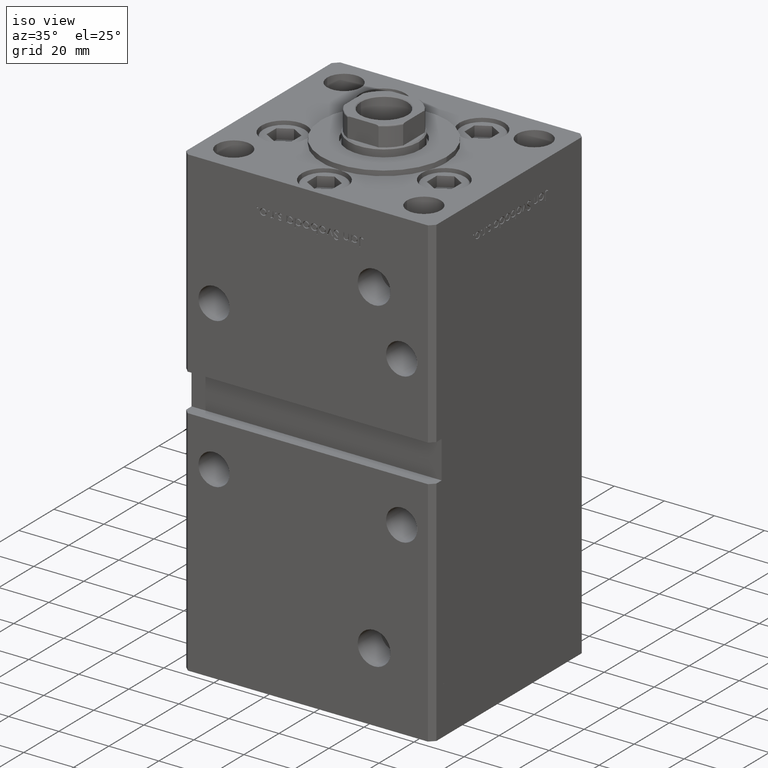
[diagram: clean part render]
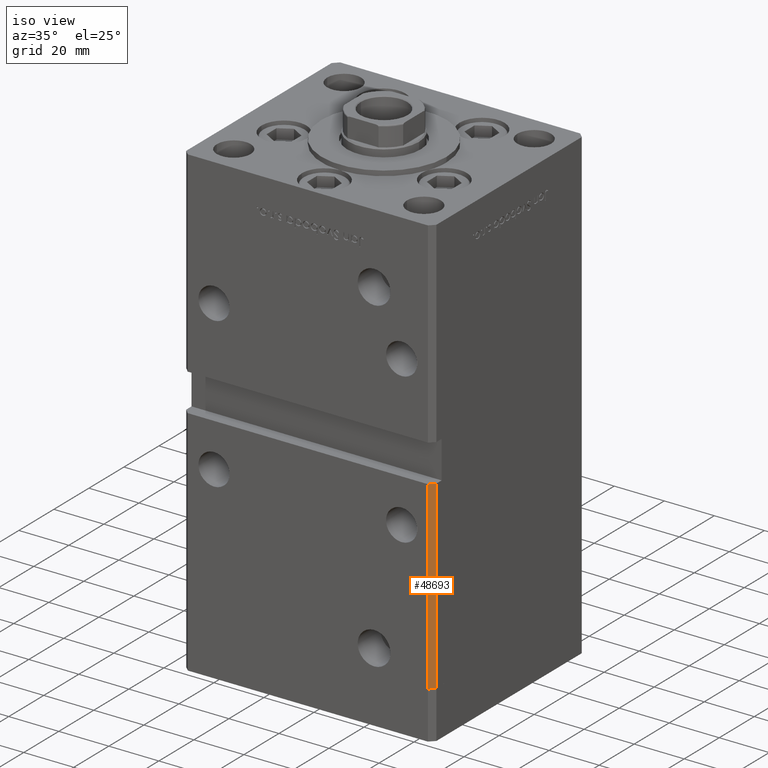
[diagram: same view with one face highlighted and labeled with its STEP entity id]
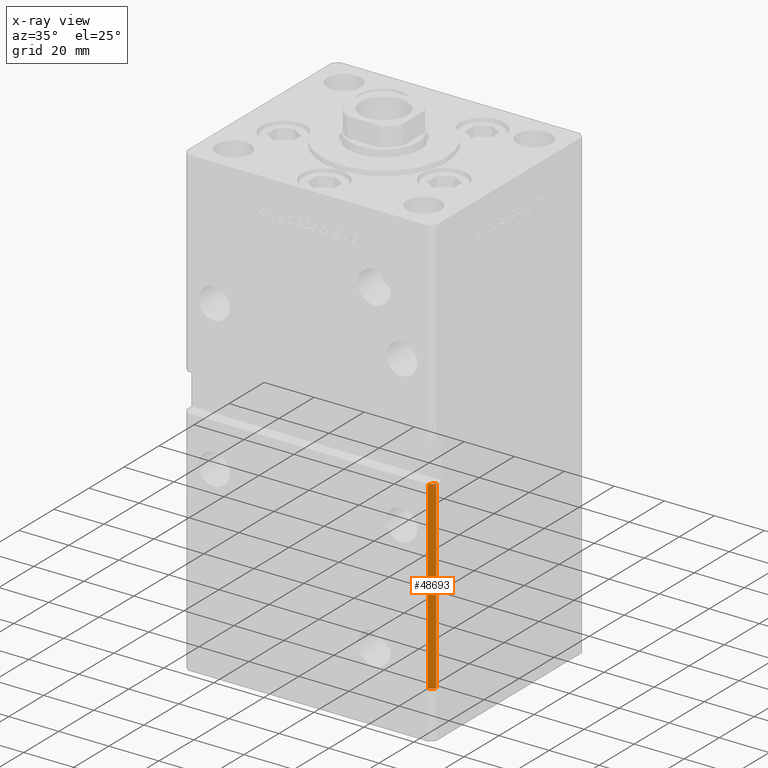
[diagram: x-ray of the same camera — body ghosted, the highlighted face saturated]
A machine part, iso view. The second image highlights one B-rep face of the part: STEP entity #48693.
The next image is the same camera in x-ray: the body ghosted, the highlighted face saturated — about 0% of this face is hidden behind the body in this view.
In plain terms, the highlighted planar face has unit normal (0.7071, -0.7071, 0).
Its self-contained STEP definition (entity closure, byte-faithful):
#348 = VERTEX_POINT ( 'NONE', #43206 ) ;
#1698 = ORIENTED_EDGE ( 'NONE', *, *, #15065, .F. ) ;
#2520 = CARTESIAN_POINT ( 'NONE',  ( 49.99999999999998579, -41.49999999999999289, 148.5000000000000000 ) ) ;
#3041 = DIRECTION ( 'NONE',  ( -0.7071067811865474617, -0.7071067811865474617, 0.000000000000000000 ) ) ;
#4519 = EDGE_CURVE ( 'NONE', #25087, #33981, #15398, .T. ) ;
#5650 = VECTOR ( 'NONE', #50968, 1000.000000000000000 ) ;
#7245 = FACE_OUTER_BOUND ( 'NONE', #10484, .T. ) ;
#7596 = VECTOR ( 'NONE', #38013, 1000.000000000000000 ) ;
#9212 = CARTESIAN_POINT ( 'NONE',  ( 47.99999999999998579, -43.50000000000000000, 148.5000000000000000 ) ) ;
#10484 = EDGE_LOOP ( 'NONE', ( #20710, #47085, #42515, #1698 ) ) ;
#15065 = EDGE_CURVE ( 'NONE', #26580, #25087, #38595, .T. ) ;
#15175 = DIRECTION ( 'NONE',  ( 0.7071067811865474617, 0.7071067811865474617, 0.000000000000000000 ) ) ;
#15398 = LINE ( 'NONE', #35603, #33136 ) ;
#17179 = CARTESIAN_POINT ( 'NONE',  ( 47.99999999999998579, -43.50000000000000000, 0.000000000000000000 ) ) ;
#19198 = CARTESIAN_POINT ( 'NONE',  ( 49.99999999999998579, -41.49999999999999289, 74.00000000000000000 ) ) ;
#19540 = VECTOR ( 'NONE', #15175, 1000.000000000000114 ) ;
#20710 = ORIENTED_EDGE ( 'NONE', *, *, #26161, .F. ) ;
#23644 = PLANE ( 'NONE',  #41203 ) ;
#24425 = DIRECTION ( 'NONE',  ( 0.7071067811865475727, -0.7071067811865475727, 0.000000000000000000 ) ) ;
#25087 = VERTEX_POINT ( 'NONE', #50772 ) ;
#26161 = EDGE_CURVE ( 'NONE', #348, #26580, #31079, .T. ) ;
#26580 = VERTEX_POINT ( 'NONE', #43925 ) ;
#29234 = EDGE_CURVE ( 'NONE', #348, #33981, #46092, .T. ) ;
#31079 = LINE ( 'NONE', #19198, #19540 ) ;
#33136 = VECTOR ( 'NONE', #3041, 1000.000000000000114 ) ;
#33981 = VERTEX_POINT ( 'NONE', #17179 ) ;
#35603 = CARTESIAN_POINT ( 'NONE',  ( 49.99999999999998579, -41.49999999999999289, 0.000000000000000000 ) ) ;
#35775 = CARTESIAN_POINT ( 'NONE',  ( 49.99999999999998579, -41.49999999999999289, 148.5000000000000000 ) ) ;
#38013 = DIRECTION ( 'NONE',  ( -0.000000000000000000, -0.000000000000000000, -1.000000000000000000 ) ) ;
#38595 = LINE ( 'NONE', #2520, #5650 ) ;
#41203 = AXIS2_PLACEMENT_3D ( 'NONE', #35775, #24425, #52451 ) ;
#42515 = ORIENTED_EDGE ( 'NONE', *, *, #4519, .F. ) ;
#43206 = CARTESIAN_POINT ( 'NONE',  ( 47.99999999999998579, -43.50000000000000000, 74.00000000000000000 ) ) ;
#43925 = CARTESIAN_POINT ( 'NONE',  ( 49.99999999999998579, -41.49999999999999289, 74.00000000000000000 ) ) ;
#46092 = LINE ( 'NONE', #9212, #7596 ) ;
#47085 = ORIENTED_EDGE ( 'NONE', *, *, #29234, .T. ) ;
#48693 = ADVANCED_FACE ( 'NONE', ( #7245 ), #23644, .T. ) ;
#50772 = CARTESIAN_POINT ( 'NONE',  ( 49.99999999999998579, -41.49999999999999289, 0.000000000000000000 ) ) ;
#50968 = DIRECTION ( 'NONE',  ( -0.000000000000000000, -0.000000000000000000, -1.000000000000000000 ) ) ;
#52451 = DIRECTION ( 'NONE',  ( 0.7071067811865474617, 0.7071067811865474617, 0.000000000000000000 ) ) ;